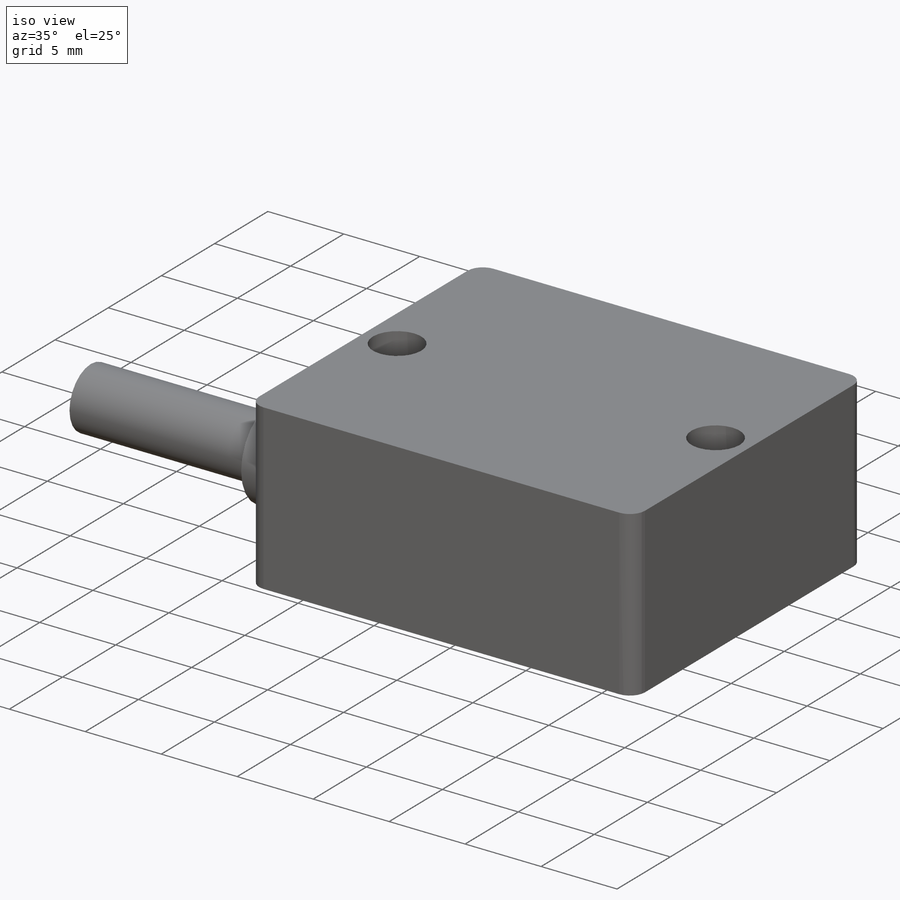
[diagram: iso view]
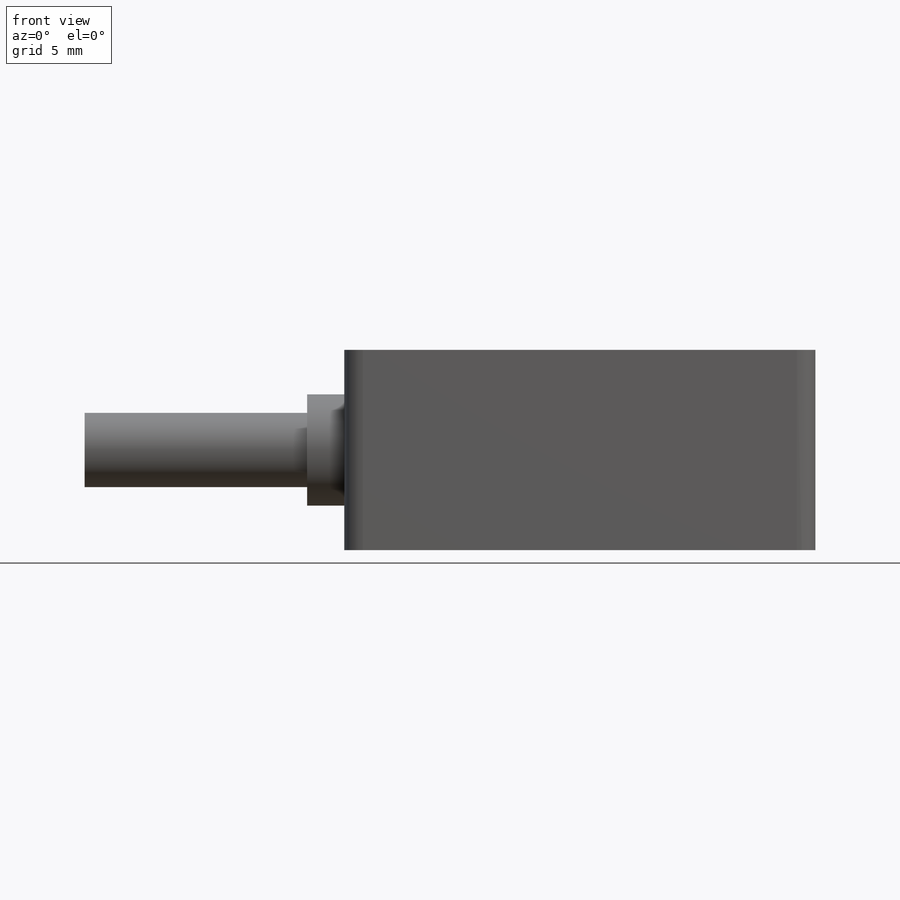
[diagram: front view]
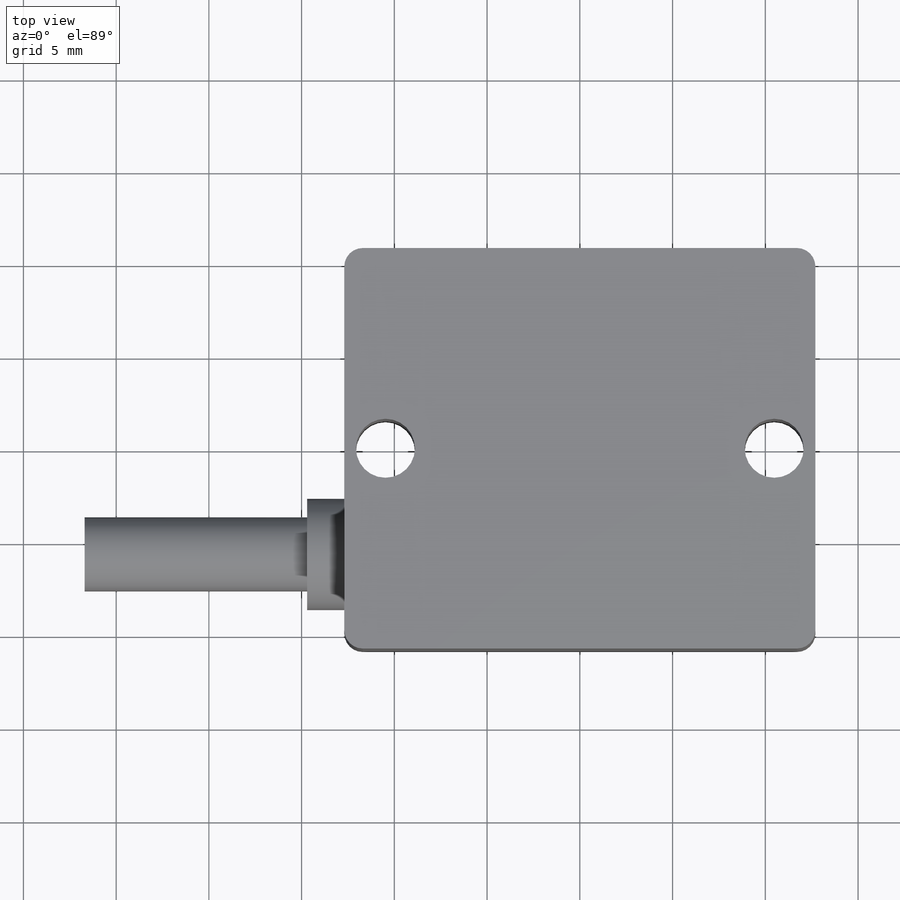
[diagram: top view]
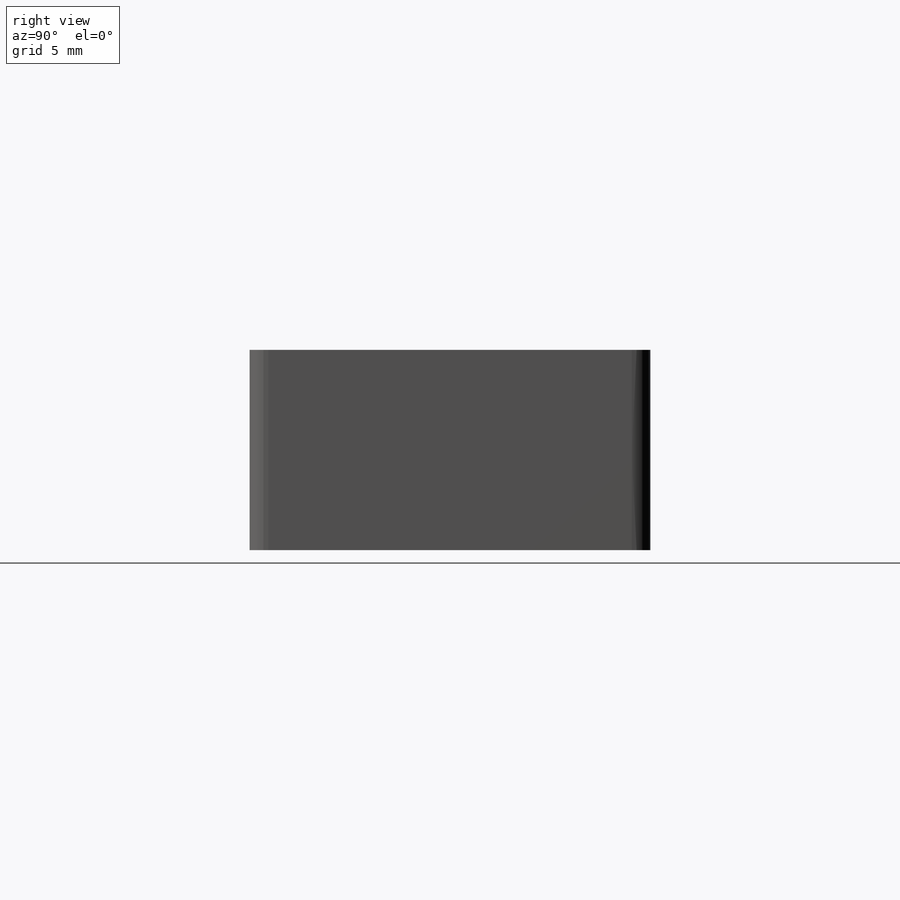
[diagram: right view]
SOLIDWORKS PART (.sldprt)
format: sldprt  version: not decoded by parser v0  size: 474,624 bytes
history: native  units: mm
features: sketch x7, extrude x5, material x1, fillet x1 (+12 scaffold rows collapsed)
feature tree (26):
  scaffold x12  (default folders/planes/origin — collapsed)
  material  "Material <not specified>"
  sketch  "Sketch1"  dims[c1.D3=3.18mm c1.D4=3.18mm c1.D1=21.6mm c1.D2=25.4mm c2.D3=21.6mm c2.D4=20.96mm]
  extrude  "Boss-Extrude1"  Depth=10.8mm
  sketch  "Sketch2"  dims[D1=1.0mm]
  sketch  "Sketch3"  dims[D1=~5.695281mm]
  extrude  "Boss-Extrude2"  Depth=2mm
  sketch  "Sketch4"  dims[D1=~5.632238mm]
  extrude  "Boss-Extrude3"  Depth=12mm
  sketch  "Sketch5"  dims[D1=3.0mm]
  sketch  "Sketch6"
  sketch  "Sketch7"
  extrude  "Split Line2"  [1 undecoded]
  extrude  "Split Line3"  [1 undecoded]
  fillet  "Fillet1"  Radius=1mm
decode coverage: 9 of 13 modeling features carry decoded parameters
note: ~ marks probable driven/reference dimensions
note: 2 parameter values undecoded
note: suppression state not decoded; provenance and decode notes live in map.json
